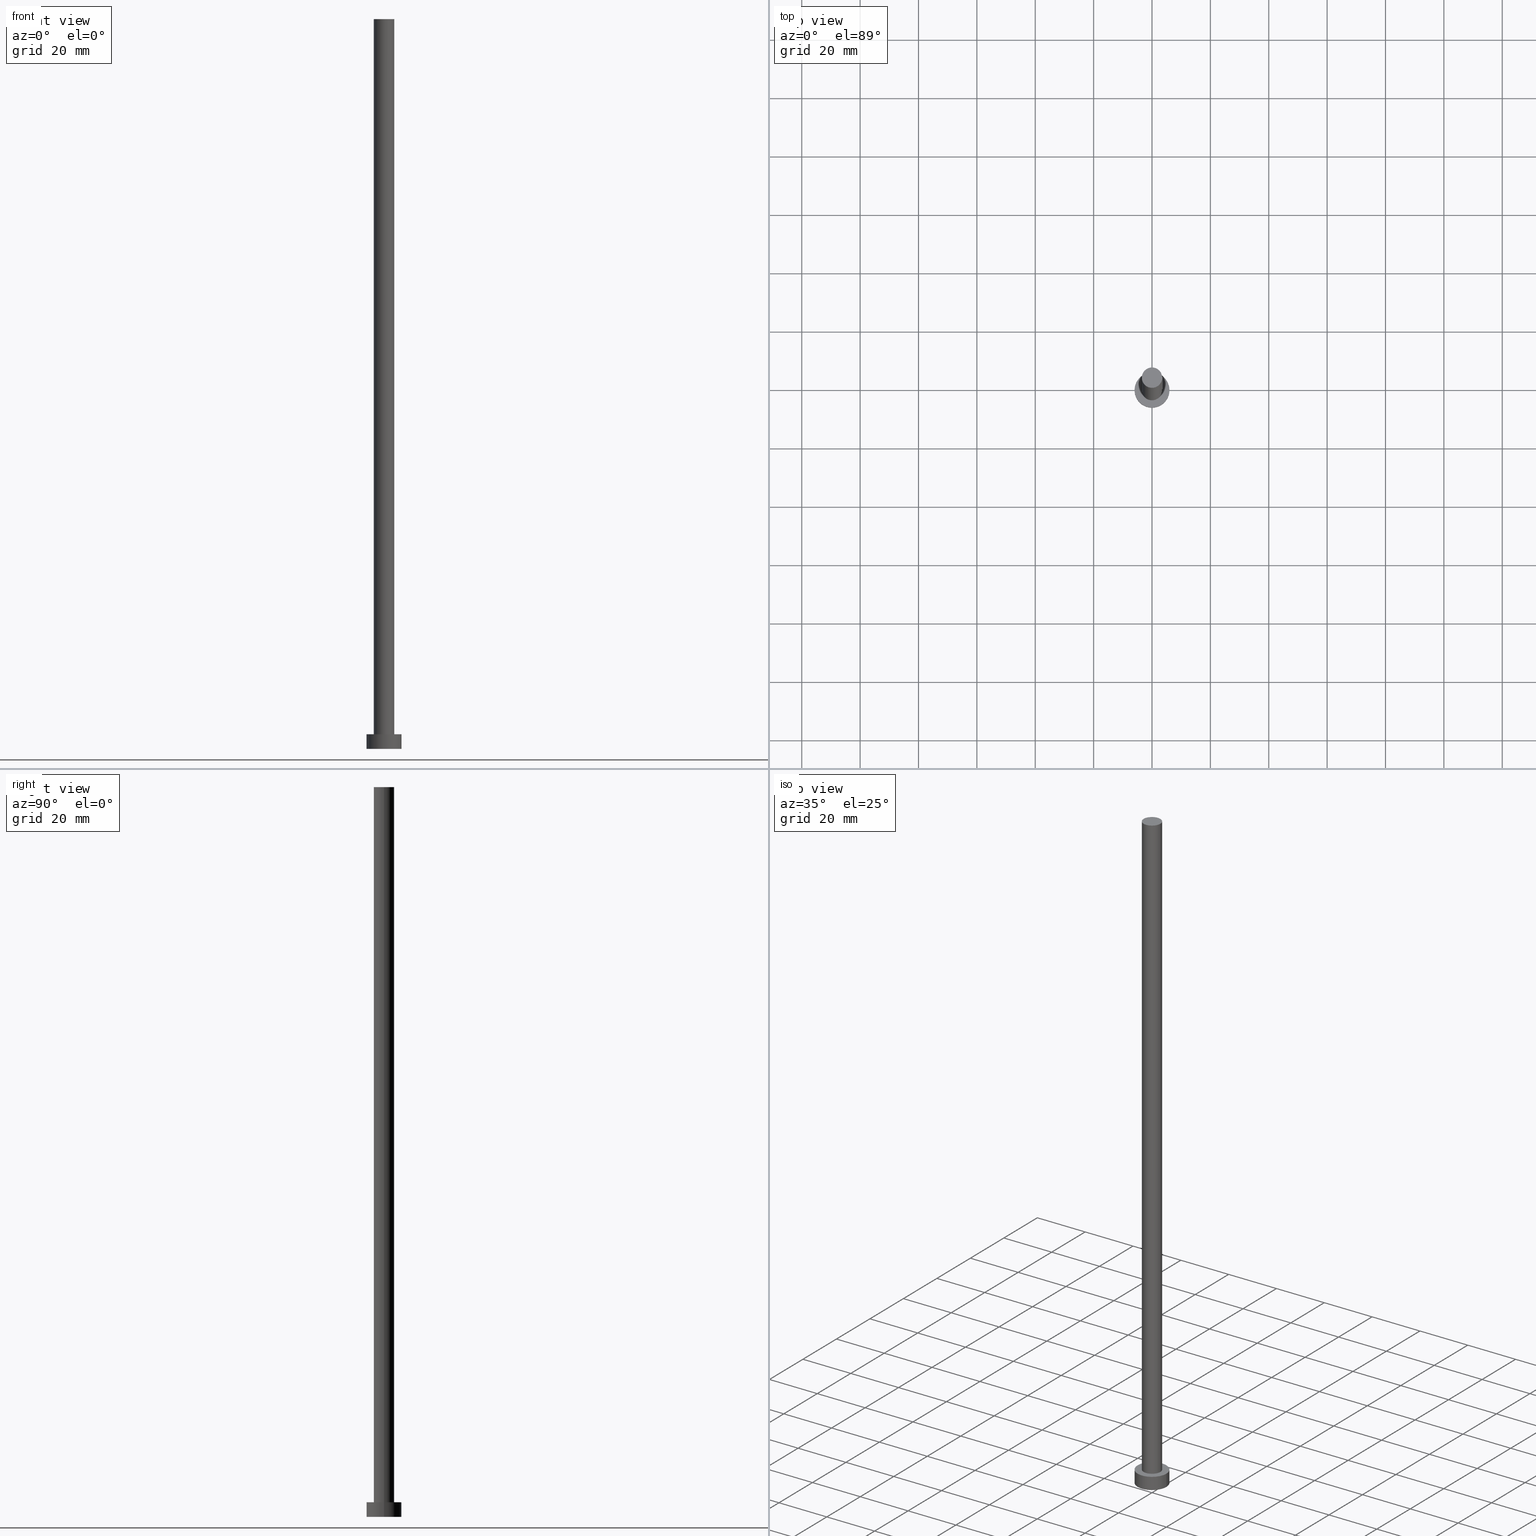
[diagram: canonical four-view strip — front | top / right | iso, engineering-drawing reading convention]
A machine part, canonical four-view strip (front | top / right | iso — engineering-drawing reading convention). The complete STEP part file that produces these views, byte-faithful:
ISO-10303-21;
HEADER;
FILE_DESCRIPTION (( 'STEP AP203' ),
    '1' );
FILE_NAME ('db1a.STEP',
    '2023-02-12T11:29:14',
    ( '' ),
    ( '' ),
    'SwSTEP 2.0',
    'SolidWorks 2019',
    '' );
FILE_SCHEMA (( 'CONFIG_CONTROL_DESIGN' ));
ENDSEC;

DATA;
#1 = EDGE_LOOP ( 'NONE', ( #48, #229 ) ) ;
#2 = DATE_AND_TIME ( #197, #217 ) ;
#3 = AXIS2_PLACEMENT_3D ( 'NONE', #254, #154, #153 ) ;
#4 = PLANE ( 'NONE',  #168 ) ;
#5 = EDGE_CURVE ( 'NONE', #25, #68, #253, .T. ) ;
#6 = ORIENTED_EDGE ( 'NONE', *, *, #188, .F. ) ;
#7 = CARTESIAN_POINT ( 'NONE',  ( -6.000000000000000888, 0.000000000000000000, 5.000000000000000000 ) ) ;
#8 = ORIENTED_EDGE ( 'NONE', *, *, #163, .T. ) ;
#9 = ADVANCED_FACE ( 'NONE', ( #155 ), #239, .T. ) ;
#10 = ADVANCED_BREP_SHAPE_REPRESENTATION ( 'db1a', ( #22, #27 ), #56 ) ;
#11 = CARTESIAN_POINT ( 'NONE',  ( 3.500000000000000000, 4.286263797015736595E-16, 250.0000000000000000 ) ) ;
#12 = DIRECTION ( 'NONE',  ( -0.000000000000000000, -0.000000000000000000, -1.000000000000000000 ) ) ;
#13 = CIRCLE ( 'NONE', #43, 6.000000000000000888 ) ;
#14 = DIRECTION ( 'NONE',  ( 0.000000000000000000, 0.000000000000000000, 1.000000000000000000 ) ) ;
#15 = PERSON_AND_ORGANIZATION_ROLE ( 'creator' ) ;
#16 = COORDINATED_UNIVERSAL_TIME_OFFSET ( 1, 0, .AHEAD. ) ;
#17 = FACE_OUTER_BOUND ( 'NONE', #195, .T. ) ;
#18 = ADVANCED_FACE ( 'NONE', ( #17 ), #201, .T. ) ;
#19 = ORIENTED_EDGE ( 'NONE', *, *, #180, .F. ) ;
#20 = CC_DESIGN_APPROVAL ( #220, ( #187 ) ) ;
#21 = ORIENTED_EDGE ( 'NONE', *, *, #198, .T. ) ;
#22 = MANIFOLD_SOLID_BREP ( 'P�idat vysunut�m3', #183 ) ;
#23 = ORIENTED_EDGE ( 'NONE', *, *, #139, .T. ) ;
#24 = CC_DESIGN_DATE_AND_TIME_ASSIGNMENT ( #166, #233, ( #36 ) ) ;
#25 = VERTEX_POINT ( 'NONE', #236 ) ;
#26 = CARTESIAN_POINT ( 'NONE',  ( 0.000000000000000000, 0.000000000000000000, 5.000000000000000000 ) ) ;
#27 = AXIS2_PLACEMENT_3D ( 'NONE', #248, #14, #252 ) ;
#28 = ORIENTED_EDGE ( 'NONE', *, *, #75, .F. ) ;
#29 = APPROVAL_PERSON_ORGANIZATION ( #147, #220, #61 ) ;
#30 = ADVANCED_FACE ( 'NONE', ( #175, #103 ), #4, .T. ) ;
#31 = DIRECTION ( 'NONE',  ( 0.000000000000000000, 0.000000000000000000, 1.000000000000000000 ) ) ;
#32 = DIRECTION ( 'NONE',  ( -0.000000000000000000, -0.000000000000000000, -1.000000000000000000 ) ) ;
#33 = AXIS2_PLACEMENT_3D ( 'NONE', #208, #185, #179 ) ;
#34 = CARTESIAN_POINT ( 'NONE',  ( 6.000000000000000888, 7.347880794884120722E-16, 5.000000000000000000 ) ) ;
#35 = DIRECTION ( 'NONE',  ( 0.000000000000000000, 0.000000000000000000, 1.000000000000000000 ) ) ;
#36 = PRODUCT_DEFINITION ( 'NEZN�M�', '', #187, #247 ) ;
#37 = PERSON_AND_ORGANIZATION ( #136, #165 ) ;
#38 = CIRCLE ( 'NONE', #45, 3.500000000000000000 ) ;
#39 = EDGE_CURVE ( 'NONE', #235, #177, #209, .T. ) ;
#40 = PERSON_AND_ORGANIZATION ( #136, #165 ) ;
#41 = ADVANCED_FACE ( 'NONE', ( #135 ), #172, .F. ) ;
#42 = DIRECTION ( 'NONE',  ( -1.000000000000000000, 0.000000000000000000, 0.000000000000000000 ) ) ;
#43 = AXIS2_PLACEMENT_3D ( 'NONE', #129, #35, #99 ) ;
#44 = ORIENTED_EDGE ( 'NONE', *, *, #66, .F. ) ;
#45 = AXIS2_PLACEMENT_3D ( 'NONE', #127, #210, #181 ) ;
#46 = ADVANCED_FACE ( 'NONE', ( #138 ), #223, .T. ) ;
#47 = CC_DESIGN_APPROVAL ( #244, ( #36 ) ) ;
#48 = ORIENTED_EDGE ( 'NONE', *, *, #163, .F. ) ;
#49 = APPROVAL_DATE_TIME ( #2, #148 ) ;
#50 = CARTESIAN_POINT ( 'NONE',  ( 0.000000000000000000, 0.000000000000000000, 5.000000000000000000 ) ) ;
#51 = DIRECTION ( 'NONE',  ( 1.000000000000000000, 0.000000000000000000, 0.000000000000000000 ) ) ;
#52 = CARTESIAN_POINT ( 'NONE',  ( 0.000000000000000000, 0.000000000000000000, 5.000000000000000000 ) ) ;
#53 = ORIENTED_EDGE ( 'NONE', *, *, #5, .T. ) ;
#54 = DIRECTION ( 'NONE',  ( 0.000000000000000000, 0.000000000000000000, 1.000000000000000000 ) ) ;
#55 = LINE ( 'NONE', #142, #109 ) ;
#56 =( GEOMETRIC_REPRESENTATION_CONTEXT ( 3 ) GLOBAL_UNCERTAINTY_ASSIGNED_CONTEXT ( ( #124 ) ) GLOBAL_UNIT_ASSIGNED_CONTEXT ( ( #193, #146, #212 ) ) REPRESENTATION_CONTEXT ( 'NONE', 'WORKASPACE' ) );
#57 = DIRECTION ( 'NONE',  ( -0.000000000000000000, -0.000000000000000000, -1.000000000000000000 ) ) ;
#58 = CC_DESIGN_PERSON_AND_ORGANIZATION_ASSIGNMENT ( #40, #15, ( #36 ) ) ;
#59 = CALENDAR_DATE ( 2023, 12, 2 ) ;
#60 = EDGE_LOOP ( 'NONE', ( #93, #170 ) ) ;
#61 = APPROVAL_ROLE ( '' ) ;
#62 = ORIENTED_EDGE ( 'NONE', *, *, #104, .F. ) ;
#63 = APPROVAL_PERSON_ORGANIZATION ( #151, #244, #82 ) ;
#64 = DIRECTION ( 'NONE',  ( 1.000000000000000000, 0.000000000000000000, -0.000000000000000000 ) ) ;
#65 = PERSON_AND_ORGANIZATION ( #136, #165 ) ;
#66 = EDGE_CURVE ( 'NONE', #177, #235, #13, .T. ) ;
#67 = DIRECTION ( 'NONE',  ( 1.000000000000000000, 0.000000000000000000, -0.000000000000000000 ) ) ;
#68 = VERTEX_POINT ( 'NONE', #116 ) ;
#69 = PERSON_AND_ORGANIZATION_ROLE ( 'classification_officer' ) ;
#70 = LOCAL_TIME ( 12, 29, 14.00000000000000000, #219 ) ;
#71 = PRODUCT_DEFINITION_SHAPE ( 'NONE', 'NONE',  #36 ) ;
#72 = CYLINDRICAL_SURFACE ( 'NONE', #90, 3.500000000000000000 ) ;
#73 = CARTESIAN_POINT ( 'NONE',  ( 3.500000000000000000, 4.286263797015736595E-16, 250.0000000000000000 ) ) ;
#74 = VERTEX_POINT ( 'NONE', #11 ) ;
#75 = EDGE_CURVE ( 'NONE', #114, #235, #97, .T. ) ;
#76 = DIRECTION ( 'NONE',  ( 1.000000000000000000, 0.000000000000000000, 0.000000000000000000 ) ) ;
#77 = CARTESIAN_POINT ( 'NONE',  ( 0.000000000000000000, 0.000000000000000000, 5.000000000000000000 ) ) ;
#78 = CC_DESIGN_SECURITY_CLASSIFICATION ( #251, ( #187 ) ) ;
#79 = APPLICATION_PROTOCOL_DEFINITION ( 'international standard', 'config_control_design', 1994, #203 ) ;
#80 = DIRECTION ( 'NONE',  ( -0.000000000000000000, -0.000000000000000000, -1.000000000000000000 ) ) ;
#81 = CALENDAR_DATE ( 2023, 12, 2 ) ;
#82 = APPROVAL_ROLE ( '' ) ;
#83 = PERSON_AND_ORGANIZATION_ROLE ( 'design_owner' ) ;
#84 = CIRCLE ( 'NONE', #227, 6.000000000000000888 ) ;
#85 = CALENDAR_DATE ( 2023, 12, 2 ) ;
#86 = COORDINATED_UNIVERSAL_TIME_OFFSET ( 1, 0, .AHEAD. ) ;
#87 = CARTESIAN_POINT ( 'NONE',  ( 0.000000000000000000, 0.000000000000000000, 0.000000000000000000 ) ) ;
#88 = EDGE_LOOP ( 'NONE', ( #134, #21, #53, #207 ) ) ;
#89 = ORIENTED_EDGE ( 'NONE', *, *, #215, .F. ) ;
#90 = AXIS2_PLACEMENT_3D ( 'NONE', #189, #57, #140 ) ;
#91 = EDGE_LOOP ( 'NONE', ( #111, #243 ) ) ;
#92 = DIRECTION ( 'NONE',  ( -0.000000000000000000, -0.000000000000000000, -1.000000000000000000 ) ) ;
#93 = ORIENTED_EDGE ( 'NONE', *, *, #180, .T. ) ;
#94 = CARTESIAN_POINT ( 'NONE',  ( -6.000000000000000888, 0.000000000000000000, 5.000000000000000000 ) ) ;
#95 = CARTESIAN_POINT ( 'NONE',  ( 0.000000000000000000, 0.000000000000000000, 250.0000000000000000 ) ) ;
#96 = EDGE_CURVE ( 'NONE', #74, #182, #176, .T. ) ;
#97 = LINE ( 'NONE', #231, #152 ) ;
#98 = CARTESIAN_POINT ( 'NONE',  ( 0.000000000000000000, 0.000000000000000000, 250.0000000000000000 ) ) ;
#99 = DIRECTION ( 'NONE',  ( 1.000000000000000000, 0.000000000000000000, 0.000000000000000000 ) ) ;
#100 = CALENDAR_DATE ( 2023, 12, 2 ) ;
#101 = VERTEX_POINT ( 'NONE', #94 ) ;
#102 = APPROVAL_ROLE ( '' ) ;
#103 = FACE_OUTER_BOUND ( 'NONE', #91, .T. ) ;
#104 = EDGE_CURVE ( 'NONE', #101, #114, #84, .T. ) ;
#105 = ORIENTED_EDGE ( 'NONE', *, *, #198, .F. ) ;
#106 = DIRECTION ( 'NONE',  ( 0.000000000000000000, 0.000000000000000000, 1.000000000000000000 ) ) ;
#107 = ORIENTED_EDGE ( 'NONE', *, *, #66, .T. ) ;
#108 = AXIS2_PLACEMENT_3D ( 'NONE', #144, #113, #160 ) ;
#109 = VECTOR ( 'NONE', #12, 1000.000000000000000 ) ;
#110 = CARTESIAN_POINT ( 'NONE',  ( -6.000000000000000888, 0.000000000000000000, 0.000000000000000000 ) ) ;
#111 = ORIENTED_EDGE ( 'NONE', *, *, #104, .T. ) ;
#112 = CYLINDRICAL_SURFACE ( 'NONE', #149, 6.000000000000000888 ) ;
#113 = DIRECTION ( 'NONE',  ( 0.000000000000000000, 0.000000000000000000, 1.000000000000000000 ) ) ;
#114 = VERTEX_POINT ( 'NONE', #34 ) ;
#115 = CARTESIAN_POINT ( 'NONE',  ( 6.000000000000000888, 7.347880794884120722E-16, 0.000000000000000000 ) ) ;
#116 = CARTESIAN_POINT ( 'NONE',  ( -3.500000000000000000, 0.000000000000000000, 5.000000000000000000 ) ) ;
#117 = COORDINATED_UNIVERSAL_TIME_OFFSET ( 1, 0, .AHEAD. ) ;
#118 = APPROVAL_STATUS ( 'not_yet_approved' ) ;
#119 = PERSON_AND_ORGANIZATION ( #136, #165 ) ;
#120 = ORIENTED_EDGE ( 'NONE', *, *, #39, .F. ) ;
#121 = SECURITY_CLASSIFICATION_LEVEL ( 'unclassified' ) ;
#122 = ORIENTED_EDGE ( 'NONE', *, *, #188, .T. ) ;
#123 = PRODUCT_RELATED_PRODUCT_CATEGORY ( 'detail', '', ( #190 ) ) ;
#124 = UNCERTAINTY_MEASURE_WITH_UNIT (LENGTH_MEASURE( 1.000000000000000082E-05 ), #193, 'distance_accuracy_value', 'NONE');
#125 = FACE_OUTER_BOUND ( 'NONE', #218, .T. ) ;
#126 = DIRECTION ( 'NONE',  ( -0.000000000000000000, -0.000000000000000000, -1.000000000000000000 ) ) ;
#127 = CARTESIAN_POINT ( 'NONE',  ( 0.000000000000000000, 0.000000000000000000, 250.0000000000000000 ) ) ;
#128 = LOCAL_TIME ( 12, 29, 14.00000000000000000, #150 ) ;
#129 = CARTESIAN_POINT ( 'NONE',  ( 0.000000000000000000, 0.000000000000000000, 0.000000000000000000 ) ) ;
#130 = MECHANICAL_CONTEXT ( 'NONE', #157, 'mechanical' ) ;
#131 = DATE_AND_TIME ( #81, #225 ) ;
#132 = ADVANCED_FACE ( 'NONE', ( #125 ), #112, .T. ) ;
#133 = CC_DESIGN_PERSON_AND_ORGANIZATION_ASSIGNMENT ( #37, #83, ( #190 ) ) ;
#134 = ORIENTED_EDGE ( 'NONE', *, *, #96, .F. ) ;
#135 = FACE_OUTER_BOUND ( 'NONE', #174, .T. ) ;
#136 = PERSON ( 'NEUR�EN�', 'NEUR�EN�', 'NEUR�EN�', ('NEUR�EN�'), ('NEUR�EN�'), ('NEUR�EN�') ) ;
#137 = PERSON_AND_ORGANIZATION_ROLE ( 'design_supplier' ) ;
#138 = FACE_OUTER_BOUND ( 'NONE', #60, .T. ) ;
#139 = EDGE_CURVE ( 'NONE', #182, #68, #55, .T. ) ;
#140 = DIRECTION ( 'NONE',  ( -1.000000000000000000, 0.000000000000000000, 0.000000000000000000 ) ) ;
#141 = ORIENTED_EDGE ( 'NONE', *, *, #39, .T. ) ;
#142 = CARTESIAN_POINT ( 'NONE',  ( -3.500000000000000000, 0.000000000000000000, 250.0000000000000000 ) ) ;
#143 = AXIS2_PLACEMENT_3D ( 'NONE', #87, #237, #67 ) ;
#144 = CARTESIAN_POINT ( 'NONE',  ( 0.000000000000000000, 0.000000000000000000, 250.0000000000000000 ) ) ;
#145 = CC_DESIGN_APPROVAL ( #148, ( #251 ) ) ;
#146 =( NAMED_UNIT ( * ) PLANE_ANGLE_UNIT ( ) SI_UNIT ( $, .RADIAN. ) );
#147 = PERSON_AND_ORGANIZATION ( #136, #165 ) ;
#148 = APPROVAL ( #238, 'NEUR�EN�' ) ;
#149 = AXIS2_PLACEMENT_3D ( 'NONE', #206, #126, #184 ) ;
#150 = COORDINATED_UNIVERSAL_TIME_OFFSET ( 1, 0, .AHEAD. ) ;
#151 = PERSON_AND_ORGANIZATION ( #136, #165 ) ;
#152 = VECTOR ( 'NONE', #161, 1000.000000000000000 ) ;
#153 = DIRECTION ( 'NONE',  ( 1.000000000000000000, 0.000000000000000000, 0.000000000000000000 ) ) ;
#154 = DIRECTION ( 'NONE',  ( 0.000000000000000000, 0.000000000000000000, 1.000000000000000000 ) ) ;
#155 = FACE_OUTER_BOUND ( 'NONE', #88, .T. ) ;
#156 = APPROVAL_PERSON_ORGANIZATION ( #255, #148, #102 ) ;
#157 = APPLICATION_CONTEXT ( 'configuration controlled 3d designs of mechanical parts and assemblies' ) ;
#158 = LINE ( 'NONE', #73, #186 ) ;
#159 = CC_DESIGN_PERSON_AND_ORGANIZATION_ASSIGNMENT ( #216, #69, ( #251 ) ) ;
#160 = DIRECTION ( 'NONE',  ( 1.000000000000000000, 0.000000000000000000, -0.000000000000000000 ) ) ;
#161 = DIRECTION ( 'NONE',  ( -0.000000000000000000, -0.000000000000000000, -1.000000000000000000 ) ) ;
#162 = DIRECTION ( 'NONE',  ( 1.000000000000000000, 0.000000000000000000, 0.000000000000000000 ) ) ;
#163 = EDGE_CURVE ( 'NONE', #68, #25, #191, .T. ) ;
#164 = DIRECTION ( 'NONE',  ( 0.000000000000000000, 0.000000000000000000, 1.000000000000000000 ) ) ;
#165 = ORGANIZATION ( 'NEUR�EN�', 'NEUR�EN�', '' ) ;
#166 = DATE_AND_TIME ( #100, #128 ) ;
#167 = CC_DESIGN_DATE_AND_TIME_ASSIGNMENT ( #171, #222, ( #251 ) ) ;
#168 = AXIS2_PLACEMENT_3D ( 'NONE', #196, #106, #64 ) ;
#169 = AXIS2_PLACEMENT_3D ( 'NONE', #52, #54, #241 ) ;
#170 = ORIENTED_EDGE ( 'NONE', *, *, #96, .T. ) ;
#171 = DATE_AND_TIME ( #85, #70 ) ;
#172 = PLANE ( 'NONE',  #143 ) ;
#173 = VECTOR ( 'NONE', #92, 1000.000000000000000 ) ;
#174 = EDGE_LOOP ( 'NONE', ( #44, #120 ) ) ;
#175 = FACE_BOUND ( 'NONE', #1, .T. ) ;
#176 = CIRCLE ( 'NONE', #202, 3.500000000000000000 ) ;
#177 = VERTEX_POINT ( 'NONE', #110 ) ;
#178 = PERSON_AND_ORGANIZATION_ROLE ( 'creator' ) ;
#179 = DIRECTION ( 'NONE',  ( 1.000000000000000000, 0.000000000000000000, 0.000000000000000000 ) ) ;
#180 = EDGE_CURVE ( 'NONE', #182, #74, #38, .T. ) ;
#181 = DIRECTION ( 'NONE',  ( 1.000000000000000000, 0.000000000000000000, 0.000000000000000000 ) ) ;
#182 = VERTEX_POINT ( 'NONE', #245 ) ;
#183 = CLOSED_SHELL ( 'NONE', ( #9, #132, #18, #30, #41, #242, #46 ) ) ;
#184 = DIRECTION ( 'NONE',  ( -1.000000000000000000, 0.000000000000000000, 0.000000000000000000 ) ) ;
#185 = DIRECTION ( 'NONE',  ( 0.000000000000000000, 0.000000000000000000, 1.000000000000000000 ) ) ;
#186 = VECTOR ( 'NONE', #32, 1000.000000000000000 ) ;
#187 = PRODUCT_DEFINITION_FORMATION_WITH_SPECIFIED_SOURCE ( 'LIBOVOLN�', '', #190, .NOT_KNOWN. ) ;
#188 = EDGE_CURVE ( 'NONE', #101, #177, #228, .T. ) ;
#189 = CARTESIAN_POINT ( 'NONE',  ( 0.000000000000000000, 0.000000000000000000, 250.0000000000000000 ) ) ;
#190 = PRODUCT ( 'db1a', 'db1a', '', ( #130 ) ) ;
#191 = CIRCLE ( 'NONE', #194, 3.500000000000000000 ) ;
#192 = APPROVAL_DATE_TIME ( #249, #244 ) ;
#193 =( LENGTH_UNIT ( ) NAMED_UNIT ( * ) SI_UNIT ( .MILLI., .METRE. ) );
#194 = AXIS2_PLACEMENT_3D ( 'NONE', #77, #31, #76 ) ;
#195 = EDGE_LOOP ( 'NONE', ( #28, #62, #122, #107 ) ) ;
#196 = CARTESIAN_POINT ( 'NONE',  ( 0.000000000000000000, 0.000000000000000000, 5.000000000000000000 ) ) ;
#197 = CALENDAR_DATE ( 2023, 12, 2 ) ;
#198 = EDGE_CURVE ( 'NONE', #74, #25, #158, .T. ) ;
#199 = CC_DESIGN_PERSON_AND_ORGANIZATION_ASSIGNMENT ( #65, #137, ( #187 ) ) ;
#200 = SHAPE_DEFINITION_REPRESENTATION ( #71, #10 ) ;
#201 = CYLINDRICAL_SURFACE ( 'NONE', #221, 6.000000000000000888 ) ;
#202 = AXIS2_PLACEMENT_3D ( 'NONE', #95, #240, #51 ) ;
#203 = APPLICATION_CONTEXT ( 'configuration controlled 3d designs of mechanical parts and assemblies' ) ;
#204 = DIRECTION ( 'NONE',  ( -1.000000000000000000, 0.000000000000000000, 0.000000000000000000 ) ) ;
#205 = LOCAL_TIME ( 12, 29, 14.00000000000000000, #117 ) ;
#206 = CARTESIAN_POINT ( 'NONE',  ( 0.000000000000000000, 0.000000000000000000, 5.000000000000000000 ) ) ;
#207 = ORIENTED_EDGE ( 'NONE', *, *, #139, .F. ) ;
#208 = CARTESIAN_POINT ( 'NONE',  ( 0.000000000000000000, 0.000000000000000000, 5.000000000000000000 ) ) ;
#209 = CIRCLE ( 'NONE', #3, 6.000000000000000888 ) ;
#210 = DIRECTION ( 'NONE',  ( 0.000000000000000000, 0.000000000000000000, 1.000000000000000000 ) ) ;
#211 = FACE_OUTER_BOUND ( 'NONE', #224, .T. ) ;
#212 =( NAMED_UNIT ( * ) SI_UNIT ( $, .STERADIAN. ) SOLID_ANGLE_UNIT ( ) );
#213 = APPROVAL_DATE_TIME ( #131, #220 ) ;
#214 = ORIENTED_EDGE ( 'NONE', *, *, #75, .T. ) ;
#215 = EDGE_CURVE ( 'NONE', #114, #101, #250, .T. ) ;
#216 = PERSON_AND_ORGANIZATION ( #136, #165 ) ;
#217 = LOCAL_TIME ( 12, 29, 14.00000000000000000, #86 ) ;
#218 = EDGE_LOOP ( 'NONE', ( #89, #214, #141, #6 ) ) ;
#219 = COORDINATED_UNIVERSAL_TIME_OFFSET ( 1, 0, .AHEAD. ) ;
#220 = APPROVAL ( #118, 'NEUR�EN�' ) ;
#221 = AXIS2_PLACEMENT_3D ( 'NONE', #50, #226, #204 ) ;
#222 = DATE_TIME_ROLE ( 'classification_date' ) ;
#223 = PLANE ( 'NONE',  #108 ) ;
#224 = EDGE_LOOP ( 'NONE', ( #105, #19, #23, #8 ) ) ;
#225 = LOCAL_TIME ( 12, 29, 14.00000000000000000, #16 ) ;
#226 = DIRECTION ( 'NONE',  ( -0.000000000000000000, -0.000000000000000000, -1.000000000000000000 ) ) ;
#227 = AXIS2_PLACEMENT_3D ( 'NONE', #26, #164, #162 ) ;
#228 = LINE ( 'NONE', #7, #173 ) ;
#229 = ORIENTED_EDGE ( 'NONE', *, *, #5, .F. ) ;
#230 = CC_DESIGN_PERSON_AND_ORGANIZATION_ASSIGNMENT ( #119, #178, ( #187 ) ) ;
#231 = CARTESIAN_POINT ( 'NONE',  ( 6.000000000000000888, 7.347880794884120722E-16, 5.000000000000000000 ) ) ;
#232 = APPLICATION_PROTOCOL_DEFINITION ( 'international standard', 'config_control_design', 1994, #157 ) ;
#233 = DATE_TIME_ROLE ( 'creation_date' ) ;
#234 = APPROVAL_STATUS ( 'not_yet_approved' ) ;
#235 = VERTEX_POINT ( 'NONE', #115 ) ;
#236 = CARTESIAN_POINT ( 'NONE',  ( 3.500000000000000000, 4.286263797015736595E-16, 5.000000000000000000 ) ) ;
#237 = DIRECTION ( 'NONE',  ( 0.000000000000000000, 0.000000000000000000, 1.000000000000000000 ) ) ;
#238 = APPROVAL_STATUS ( 'not_yet_approved' ) ;
#239 = CYLINDRICAL_SURFACE ( 'NONE', #246, 3.500000000000000000 ) ;
#240 = DIRECTION ( 'NONE',  ( 0.000000000000000000, 0.000000000000000000, 1.000000000000000000 ) ) ;
#241 = DIRECTION ( 'NONE',  ( 1.000000000000000000, 0.000000000000000000, 0.000000000000000000 ) ) ;
#242 = ADVANCED_FACE ( 'NONE', ( #211 ), #72, .T. ) ;
#243 = ORIENTED_EDGE ( 'NONE', *, *, #215, .T. ) ;
#244 = APPROVAL ( #234, 'NEUR�EN�' ) ;
#245 = CARTESIAN_POINT ( 'NONE',  ( -3.500000000000000000, 0.000000000000000000, 250.0000000000000000 ) ) ;
#246 = AXIS2_PLACEMENT_3D ( 'NONE', #98, #80, #42 ) ;
#247 = DESIGN_CONTEXT ( 'detailed design', #203, 'design' ) ;
#248 = CARTESIAN_POINT ( 'NONE',  ( 0.000000000000000000, 0.000000000000000000, 0.000000000000000000 ) ) ;
#249 = DATE_AND_TIME ( #59, #205 ) ;
#250 = CIRCLE ( 'NONE', #169, 6.000000000000000888 ) ;
#251 = SECURITY_CLASSIFICATION ( '', '', #121 ) ;
#252 = DIRECTION ( 'NONE',  ( 1.000000000000000000, 0.000000000000000000, 0.000000000000000000 ) ) ;
#253 = CIRCLE ( 'NONE', #33, 3.500000000000000000 ) ;
#254 = CARTESIAN_POINT ( 'NONE',  ( 0.000000000000000000, 0.000000000000000000, 0.000000000000000000 ) ) ;
#255 = PERSON_AND_ORGANIZATION ( #136, #165 ) ;
ENDSEC;
END-ISO-10303-21;
